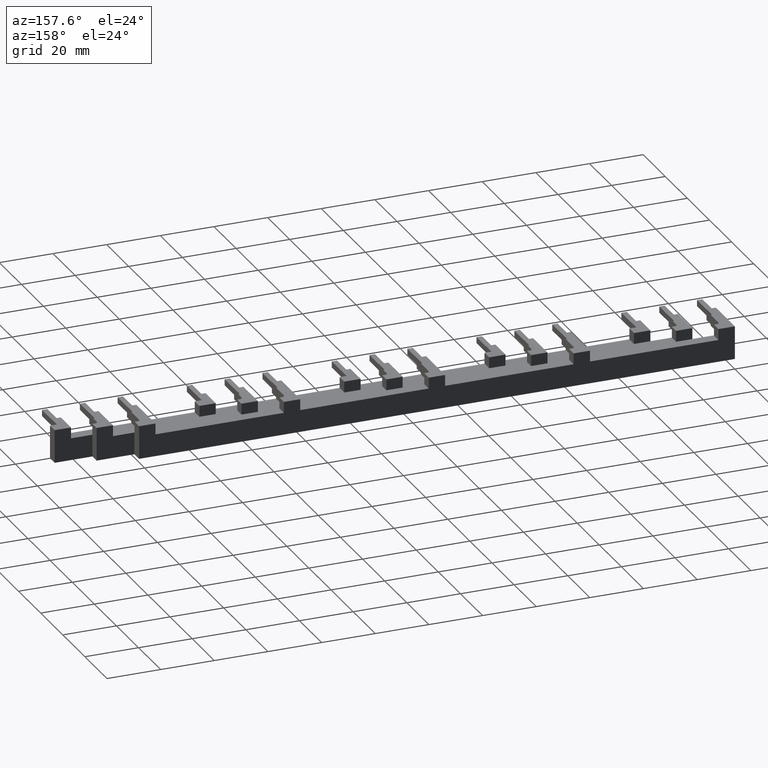
[diagram: clean part render]
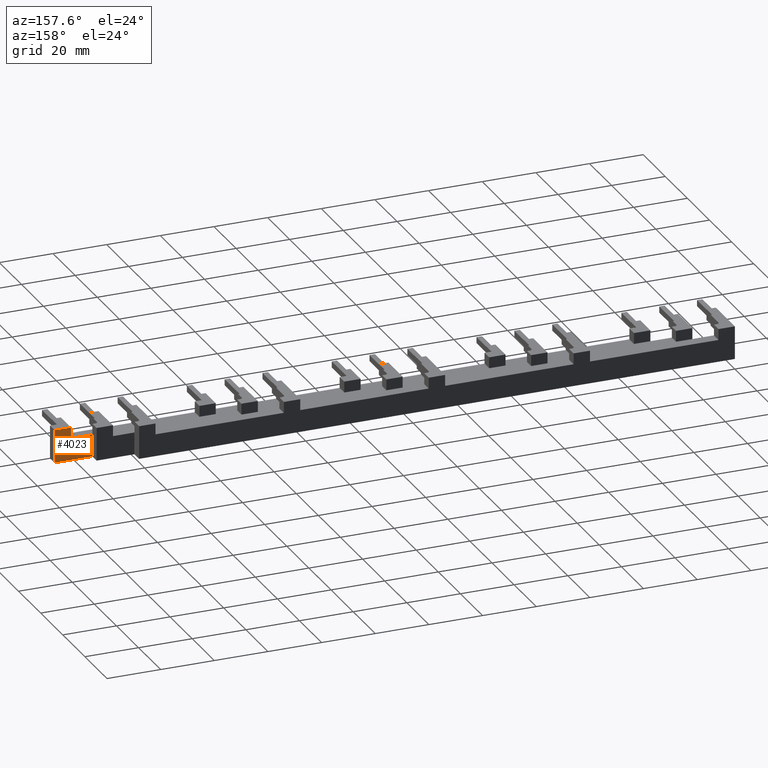
[diagram: same view with one face highlighted and labeled with its STEP entity id]
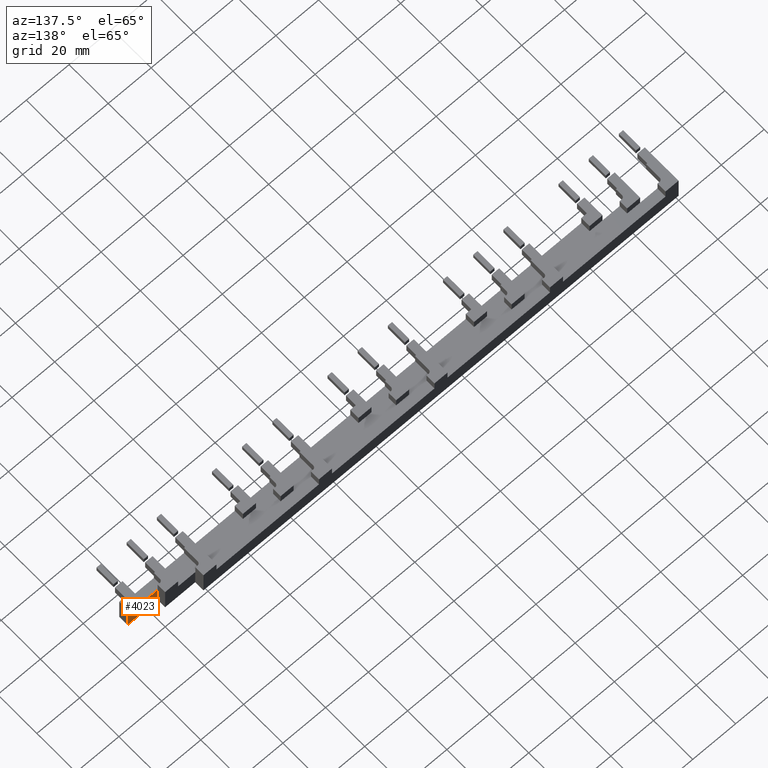
[diagram: same view with one face highlighted and labeled with its STEP entity id]
A machine part, auxiliary view. The second image highlights one B-rep face of the part: STEP entity #4023.
A second angle (auxiliary view) of the same face is appended — the face is thin or edge-on in the first view.
In plain terms, the highlighted planar face has unit normal (0, -1, 0).
Its self-contained STEP definition (entity closure, byte-faithful):
#2890=CARTESIAN_POINT('',(236.19999999999976,-8.000000000007931,108.2));
#2891=VERTEX_POINT('',#2890);
#2974=CARTESIAN_POINT('',(244.19999999999962,-8.000000000007931,108.2));
#2975=VERTEX_POINT('',#2974);
#2982=CARTESIAN_POINT('',(244.19999999999965,-8.000000000007931,108.20000000000002));
#2983=DIRECTION('',(-1.0,0.0,0.0));
#2984=VECTOR('',#2983,7.999999999999915);
#2985=LINE('',#2982,#2984);
#2986=EDGE_CURVE('',#2975,#2891,#2985,.T.);
#3067=CARTESIAN_POINT('',(244.19999999999962,-8.000000000007931,112.30000000000003));
#3068=VERTEX_POINT('',#3067);
#3075=CARTESIAN_POINT('',(244.19999999999962,-8.000000000007931,108.2));
#3076=DIRECTION('',(0.0,0.0,1.0));
#3077=VECTOR('',#3076,4.100000000000009);
#3078=LINE('',#3075,#3077);
#3079=EDGE_CURVE('',#2975,#3068,#3078,.T.);
#3097=CARTESIAN_POINT('',(250.29999999999967,-8.000000000007931,112.30000000000003));
#3098=VERTEX_POINT('',#3097);
#3099=CARTESIAN_POINT('',(244.19999999999962,-8.000000000007931,112.30000000000003));
#3100=DIRECTION('',(1.0,0.0,0.0));
#3101=VECTOR('',#3100,6.100000000000023);
#3102=LINE('',#3099,#3101);
#3103=EDGE_CURVE('',#3068,#3098,#3102,.T.);
#3991=CARTESIAN_POINT('',(189.24999999999969,-8.000000000007931,104.10000000000002));
#3992=DIRECTION('',(0.0,-1.0,0.0));
#3993=DIRECTION('',(0.0,0.0,-1.0));
#3994=AXIS2_PLACEMENT_3D('',#3991,#3992,#3993);
#3995=PLANE('',#3994);
#3996=CARTESIAN_POINT('',(250.29999999999967,-8.000000000007931,100.0));
#3997=VERTEX_POINT('',#3996);
#3998=CARTESIAN_POINT('',(250.29999999999967,-8.000000000007933,100.0));
#3999=DIRECTION('',(0.0,0.0,1.0));
#4000=VECTOR('',#3999,12.300000000000011);
#4001=LINE('',#3998,#4000);
#4002=EDGE_CURVE('',#3997,#3098,#4001,.T.);
#4003=ORIENTED_EDGE('',*,*,#4002,.F.);
#4004=CARTESIAN_POINT('',(236.19999999999976,-8.000000000007931,100.0));
#4005=VERTEX_POINT('',#4004);
#4006=CARTESIAN_POINT('',(236.19999999999976,-8.000000000007931,100.0));
#4007=DIRECTION('',(1.0,0.0,0.0));
#4008=VECTOR('',#4007,14.099999999999909);
#4009=LINE('',#4006,#4008);
#4010=EDGE_CURVE('',#4005,#3997,#4009,.T.);
#4011=ORIENTED_EDGE('',*,*,#4010,.F.);
#4012=CARTESIAN_POINT('',(236.19999999999976,-8.000000000007931,108.2));
#4013=DIRECTION('',(0.0,0.0,-1.0));
#4014=VECTOR('',#4013,8.200000000000003);
#4015=LINE('',#4012,#4014);
#4016=EDGE_CURVE('',#2891,#4005,#4015,.T.);
#4017=ORIENTED_EDGE('',*,*,#4016,.F.);
#4018=ORIENTED_EDGE('',*,*,#2986,.F.);
#4019=ORIENTED_EDGE('',*,*,#3079,.T.);
#4020=ORIENTED_EDGE('',*,*,#3103,.T.);
#4021=EDGE_LOOP('',(#4003,#4011,#4017,#4018,#4019,#4020));
#4022=FACE_OUTER_BOUND('',#4021,.T.);
#4023=ADVANCED_FACE('',(#4022),#3995,.F.);